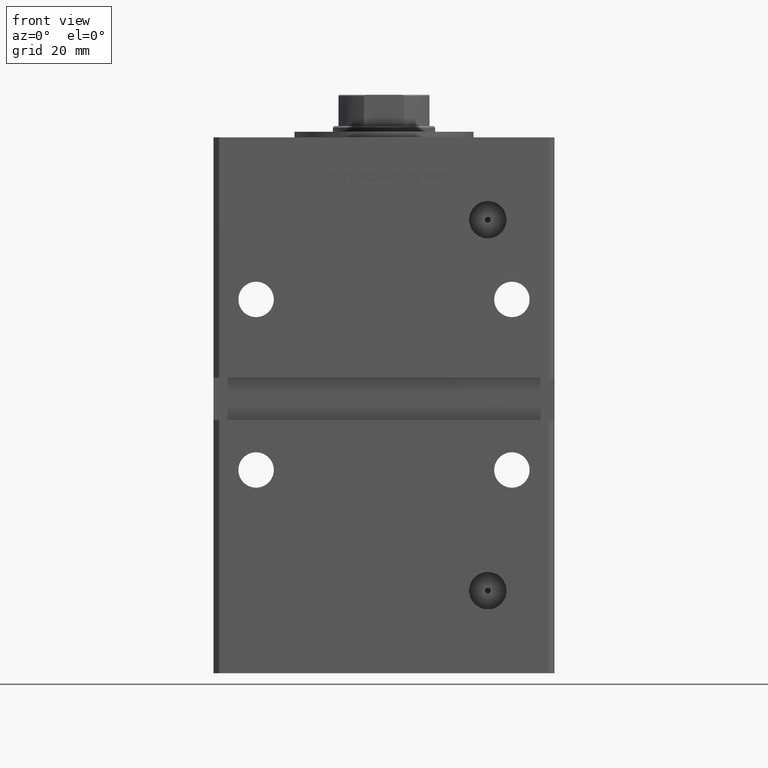
[diagram: clean part render]
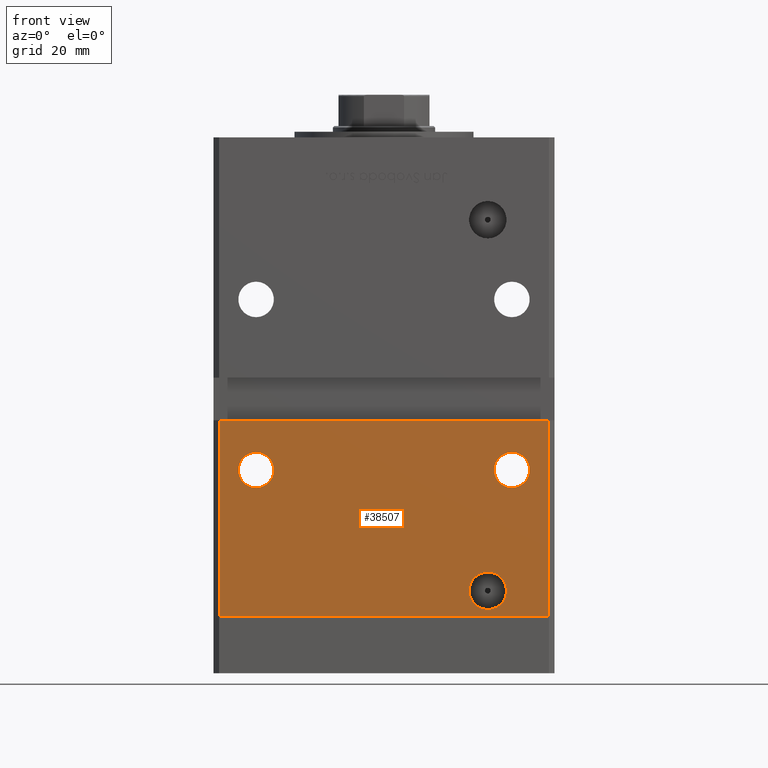
[diagram: same view with one face highlighted and labeled with its STEP entity id]
A machine part, front view. The second image highlights one B-rep face of the part: STEP entity #38507.
In plain terms, the highlighted planar face has unit normal (0, 1, 0).
Its self-contained STEP definition (entity closure, byte-faithful):
#136 = EDGE_CURVE ( 'NONE', #48011, #36390, #51029, .T. ) ;
#473 = CARTESIAN_POINT ( 'NONE',  ( 36.49999999999999289, -50.99999999999999289, 15.57999999999999474 ) ) ;
#1307 = DIRECTION ( 'NONE',  ( 0.000000000000000000, 0.000000000000000000, 1.000000000000000000 ) ) ;
#1511 = VERTEX_POINT ( 'NONE', #24964 ) ;
#1705 = VERTEX_POINT ( 'NONE', #10728 ) ;
#4295 = EDGE_LOOP ( 'NONE', ( #23015, #30584 ) ) ;
#6468 = CARTESIAN_POINT ( 'NONE',  ( 45.00000000000000000, -50.99999999999999289, 57.74999999999999289 ) ) ;
#7303 = AXIS2_PLACEMENT_3D ( 'NONE', #27646, #47490, #35151 ) ;
#8546 = VECTOR ( 'NONE', #17802, 1000.000000000000000 ) ;
#8645 = EDGE_CURVE ( 'NONE', #24004, #44584, #12079, .T. ) ;
#8820 = AXIS2_PLACEMENT_3D ( 'NONE', #36101, #16006, #32615 ) ;
#9420 = ORIENTED_EDGE ( 'NONE', *, *, #35398, .F. ) ;
#9452 = VECTOR ( 'NONE', #41769, 1000.000000000000000 ) ;
#9992 = CIRCLE ( 'NONE', #27083, 6.579999999999994742 ) ;
#10728 = CARTESIAN_POINT ( 'NONE',  ( 36.49999999999999289, -50.99999999999999289, 2.420000000000004814 ) ) ;
#10983 = CARTESIAN_POINT ( 'NONE',  ( -57.99999999999997868, -50.99999999999999289, 148.5000000000000000 ) ) ;
#12079 = CIRCLE ( 'NONE', #51302, 6.249999999999998224 ) ;
#12317 = DIRECTION ( 'NONE',  ( 0.000000000000000000, -0.000000000000000000, 1.000000000000000000 ) ) ;
#12866 = ORIENTED_EDGE ( 'NONE', *, *, #17159, .T. ) ;
#13154 = CARTESIAN_POINT ( 'NONE',  ( 36.49999999999999289, -50.99999999999999289, 9.000000000000000000 ) ) ;
#13758 = CARTESIAN_POINT ( 'NONE',  ( -45.00000000000000000, -50.99999999999999289, 45.25000000000000000 ) ) ;
#14331 = VERTEX_POINT ( 'NONE', #40037 ) ;
#14846 = DIRECTION ( 'NONE',  ( 1.000000000000000000, 0.000000000000000000, 0.000000000000000000 ) ) ;
#14995 = FACE_BOUND ( 'NONE', #52769, .T. ) ;
#15585 = VERTEX_POINT ( 'NONE', #473 ) ;
#15850 = DIRECTION ( 'NONE',  ( -0.000000000000000000, -0.000000000000000000, -1.000000000000000000 ) ) ;
#16006 = DIRECTION ( 'NONE',  ( 0.000000000000000000, 1.000000000000000000, 0.000000000000000000 ) ) ;
#16174 = DIRECTION ( 'NONE',  ( 0.000000000000000000, 1.000000000000000000, 0.000000000000000000 ) ) ;
#17159 = EDGE_CURVE ( 'NONE', #44584, #24004, #39849, .T. ) ;
#17608 = CARTESIAN_POINT ( 'NONE',  ( -57.99999999999997868, -50.99999999999999289, 68.99999999999998579 ) ) ;
#17802 = DIRECTION ( 'NONE',  ( 1.000000000000000000, 0.000000000000000000, 0.000000000000000000 ) ) ;
#17959 = DIRECTION ( 'NONE',  ( 0.000000000000000000, -1.000000000000000000, 0.000000000000000000 ) ) ;
#18597 = CARTESIAN_POINT ( 'NONE',  ( -59.99999999999998579, -50.99999999999999289, 68.99999999999998579 ) ) ;
#18865 = ORIENTED_EDGE ( 'NONE', *, *, #47992, .F. ) ;
#19215 = CARTESIAN_POINT ( 'NONE',  ( 45.00000000000000000, -50.99999999999999289, 45.25000000000000000 ) ) ;
#19620 = CARTESIAN_POINT ( 'NONE',  ( 36.49999999999999289, -50.99999999999999289, 9.000000000000000000 ) ) ;
#21190 = CIRCLE ( 'NONE', #51129, 6.249999999999998224 ) ;
#21811 = EDGE_CURVE ( 'NONE', #15585, #1705, #9992, .T. ) ;
#22712 = CARTESIAN_POINT ( 'NONE',  ( 45.00000000000000000, -50.99999999999999289, 51.50000000000000000 ) ) ;
#23015 = ORIENTED_EDGE ( 'NONE', *, *, #46778, .T. ) ;
#24004 = VERTEX_POINT ( 'NONE', #13758 ) ;
#24964 = CARTESIAN_POINT ( 'NONE',  ( 57.99999999999997868, -50.99999999999999289, 0.000000000000000000 ) ) ;
#25007 = ORIENTED_EDGE ( 'NONE', *, *, #21811, .F. ) ;
#25028 = ORIENTED_EDGE ( 'NONE', *, *, #136, .F. ) ;
#25134 = ORIENTED_EDGE ( 'NONE', *, *, #34157, .T. ) ;
#25417 = LINE ( 'NONE', #30671, #9452 ) ;
#25745 = DIRECTION ( 'NONE',  ( 0.000000000000000000, 0.000000000000000000, -1.000000000000000000 ) ) ;
#25854 = LINE ( 'NONE', #42199, #8546 ) ;
#27083 = AXIS2_PLACEMENT_3D ( 'NONE', #13154, #17959, #25745 ) ;
#27096 = DIRECTION ( 'NONE',  ( 0.000000000000000000, 0.000000000000000000, -1.000000000000000000 ) ) ;
#27320 = FACE_BOUND ( 'NONE', #39086, .T. ) ;
#27646 = CARTESIAN_POINT ( 'NONE',  ( -45.00000000000000000, -50.99999999999999289, 51.50000000000000000 ) ) ;
#27678 = CIRCLE ( 'NONE', #8820, 6.249999999999998224 ) ;
#28877 = CARTESIAN_POINT ( 'NONE',  ( 57.99999999999997868, -50.99999999999999289, 148.5000000000000000 ) ) ;
#29993 = CIRCLE ( 'NONE', #36870, 6.579999999999994742 ) ;
#30000 = ORIENTED_EDGE ( 'NONE', *, *, #39796, .T. ) ;
#30584 = ORIENTED_EDGE ( 'NONE', *, *, #44213, .T. ) ;
#30671 = CARTESIAN_POINT ( 'NONE',  ( -57.99999999999997868, -50.99999999999999289, 148.5000000000000000 ) ) ;
#31332 = FACE_OUTER_BOUND ( 'NONE', #43572, .T. ) ;
#32379 = ORIENTED_EDGE ( 'NONE', *, *, #8645, .T. ) ;
#32615 = DIRECTION ( 'NONE',  ( 0.000000000000000000, 0.000000000000000000, 1.000000000000000000 ) ) ;
#34157 = EDGE_CURVE ( 'NONE', #14331, #1511, #25854, .T. ) ;
#35109 = AXIS2_PLACEMENT_3D ( 'NONE', #10983, #43685, #12317 ) ;
#35151 = DIRECTION ( 'NONE',  ( 0.000000000000000000, 0.000000000000000000, 1.000000000000000000 ) ) ;
#35398 = EDGE_CURVE ( 'NONE', #1705, #15585, #29993, .T. ) ;
#36073 = VERTEX_POINT ( 'NONE', #19215 ) ;
#36101 = CARTESIAN_POINT ( 'NONE',  ( 45.00000000000000000, -50.99999999999999289, 51.50000000000000000 ) ) ;
#36390 = VERTEX_POINT ( 'NONE', #38127 ) ;
#36870 = AXIS2_PLACEMENT_3D ( 'NONE', #19620, #47486, #27096 ) ;
#38127 = CARTESIAN_POINT ( 'NONE',  ( 57.99999999999997868, -50.99999999999999289, 68.99999999999998579 ) ) ;
#38507 = ADVANCED_FACE ( 'NONE', ( #14995, #51714, #27320, #31332 ), #47702, .F. ) ;
#39086 = EDGE_LOOP ( 'NONE', ( #9420, #25007 ) ) ;
#39796 = EDGE_CURVE ( 'NONE', #48011, #14331, #25417, .T. ) ;
#39849 = CIRCLE ( 'NONE', #7303, 6.249999999999998224 ) ;
#40037 = CARTESIAN_POINT ( 'NONE',  ( -57.99999999999997868, -50.99999999999999289, 0.000000000000000000 ) ) ;
#41769 = DIRECTION ( 'NONE',  ( -0.000000000000000000, -0.000000000000000000, -1.000000000000000000 ) ) ;
#41791 = VECTOR ( 'NONE', #14846, 1000.000000000000000 ) ;
#42199 = CARTESIAN_POINT ( 'NONE',  ( -57.99999999999997868, -50.99999999999999289, 0.000000000000000000 ) ) ;
#42835 = DIRECTION ( 'NONE',  ( 0.000000000000000000, 1.000000000000000000, 0.000000000000000000 ) ) ;
#43572 = EDGE_LOOP ( 'NONE', ( #18865, #25028, #30000, #25134 ) ) ;
#43685 = DIRECTION ( 'NONE',  ( 0.000000000000000000, 1.000000000000000000, 0.000000000000000000 ) ) ;
#44213 = EDGE_CURVE ( 'NONE', #36073, #44707, #27678, .T. ) ;
#44584 = VERTEX_POINT ( 'NONE', #45144 ) ;
#44707 = VERTEX_POINT ( 'NONE', #6468 ) ;
#45144 = CARTESIAN_POINT ( 'NONE',  ( -45.00000000000000000, -50.99999999999999289, 57.74999999999999289 ) ) ;
#46778 = EDGE_CURVE ( 'NONE', #44707, #36073, #21190, .T. ) ;
#47385 = DIRECTION ( 'NONE',  ( 0.000000000000000000, 0.000000000000000000, 1.000000000000000000 ) ) ;
#47486 = DIRECTION ( 'NONE',  ( 0.000000000000000000, -1.000000000000000000, 0.000000000000000000 ) ) ;
#47490 = DIRECTION ( 'NONE',  ( 0.000000000000000000, 1.000000000000000000, 0.000000000000000000 ) ) ;
#47702 = PLANE ( 'NONE',  #35109 ) ;
#47992 = EDGE_CURVE ( 'NONE', #36390, #1511, #48278, .T. ) ;
#48011 = VERTEX_POINT ( 'NONE', #17608 ) ;
#48278 = LINE ( 'NONE', #28877, #48631 ) ;
#48601 = CARTESIAN_POINT ( 'NONE',  ( -45.00000000000000000, -50.99999999999999289, 51.50000000000000000 ) ) ;
#48631 = VECTOR ( 'NONE', #15850, 1000.000000000000000 ) ;
#51029 = LINE ( 'NONE', #18597, #41791 ) ;
#51129 = AXIS2_PLACEMENT_3D ( 'NONE', #22712, #42835, #47385 ) ;
#51302 = AXIS2_PLACEMENT_3D ( 'NONE', #48601, #16174, #1307 ) ;
#51714 = FACE_BOUND ( 'NONE', #4295, .T. ) ;
#52769 = EDGE_LOOP ( 'NONE', ( #12866, #32379 ) ) ;